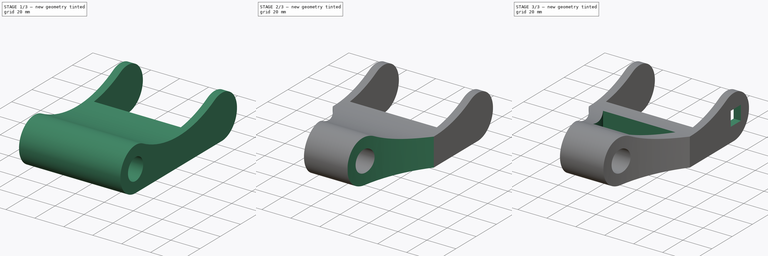
[diagram: build sequence overview — one tinted view per stage of 3, left to right]
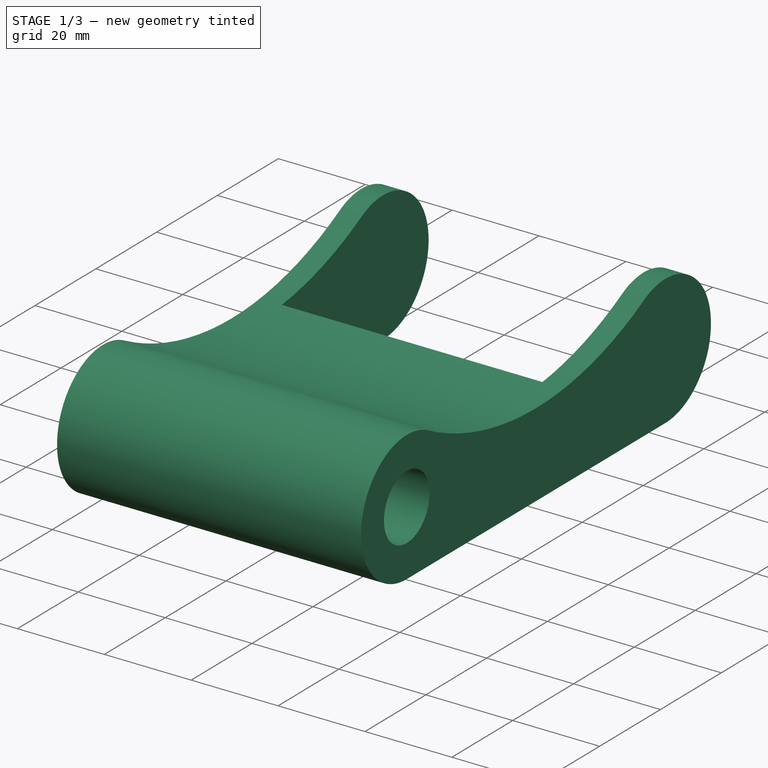
[diagram: stage 1 of 3 — iso view after this stage's code; geometry added in this stage tinted green]
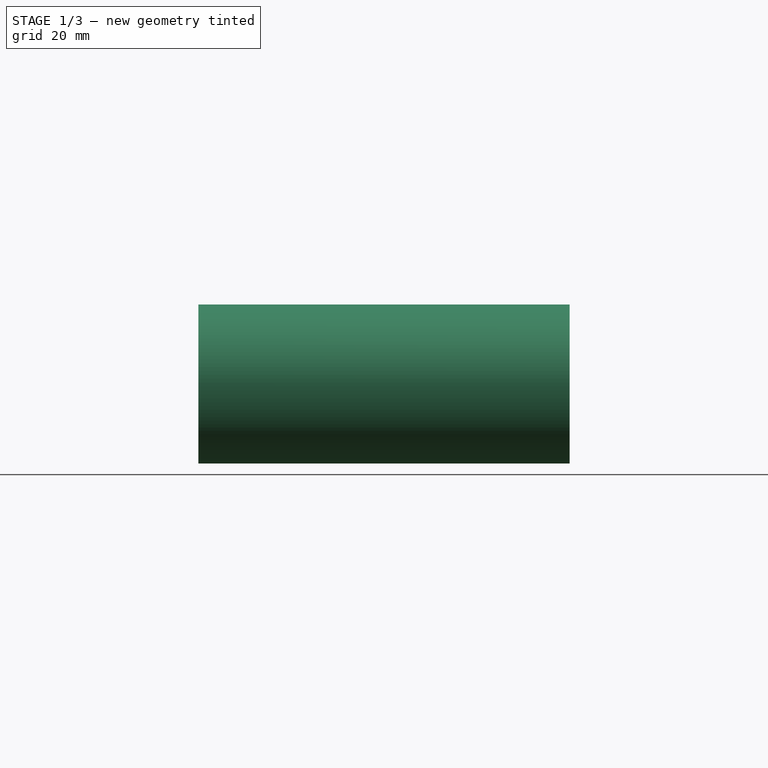
[diagram: stage 1 of 3 — front view after this stage's code; geometry added in this stage tinted green]
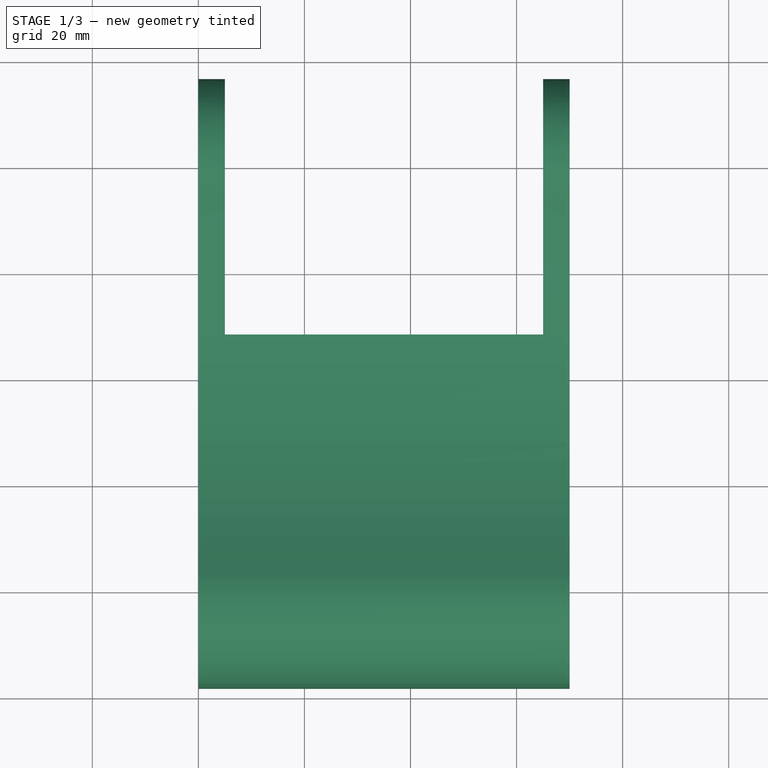
[diagram: stage 1 of 3 — top view after this stage's code; geometry added in this stage tinted green]
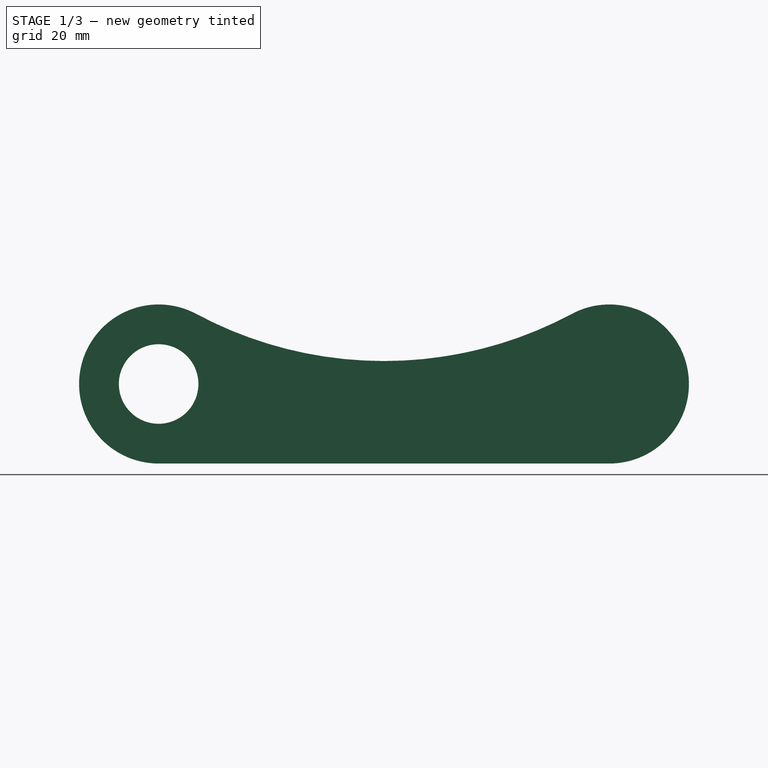
[diagram: stage 1 of 3 — right view after this stage's code; geometry added in this stage tinted green]
FCSTD DOCUMENT  (FreeCAD 0.20R29410 (Git))
Label: knee
License: All rights reserved
LicenseURL: http://en.wikipedia.org/wiki/All_rights_reserved
objects: Sketcher::SketchObject×5, PartDesign::Pocket×4, PartDesign::Pad×1, PartDesign::Body×1
note: 16 computed .brp shape members not serialized (recipe doc carries the construction recipe); baked Part::Feature solids carry a one-line shape summary decoded from their .brp

FEATURE [Sketcher::SketchObject] Sketch
  FullyConstrained = false
  MapMode = 5
  Placement = pos=(0,0,0) rot=(0.57735,0.57735,0.57735;2.0944rad)
  Support = -> [YZ_Plane]
  sketch-geometry (6):
    g0: ArcOfCircle CenterX=-43.413 CenterY=0 CenterZ=0 NormalX=0 NormalY=0 NormalZ=1 AngleXU=0 Radius=15 StartAngle=1.08882 EndAngle=4.71239
    g1: ArcOfCircle CenterX=41.5884 CenterY=0 CenterZ=0 NormalX=0 NormalY=0 NormalZ=1 AngleXU=0 Radius=15 StartAngle=4.71239 EndAngle=8.3477
    g2: LineSegment StartX=-43.413 StartY=-15 StartZ=0 EndX=41.5884 EndY=-15 EndZ=0
    g3: ArcOfCircle CenterX=-0.913172 CenterY=79.3323 CenterZ=0 NormalX=0 NormalY=0 NormalZ=1 AngleXU=0 Radius=75 StartAngle=4.21861 EndAngle=5.20384
    g4: Circle CenterX=-43.413 CenterY=0 CenterZ=0 NormalX=0 NormalY=0 NormalZ=1 AngleXU=0 Radius=7.5
    g5: GeomPoint X=-58.4114 Y=-0.220169 Z=0
  constraints (15):
    c: PointOnObject(g0,g-1)
    c: PointOnObject(g1,g-1)
    c: Radius(g0) = 15
    c: Radius(g1) = 15
    c: Coincident(g2,g0)
    c: Coincident(g2,g1)
    c: Horizontal(g2)
    c: Coincident(g3,g0)
    c: Coincident(g3,g1)
    c: Coincident(g4,g0)
    c: Radius(g4) = 7.5
    c: DistanceY(g0,g-1) = 15
    c: Radius(g3) = 75
    c: PointOnObject(g5,g0)
    c: Distance(g5,g1) = 100
FEATURE [PartDesign::Pad] Pad  label="MainKneePad"
  Direction = (1,-2e-16,3e-16)
  Length = 70
  Length2 = 10
  Placement = pos=(0,0,0) rot=(0.57735,0.57735,0.57735;2.0944rad)
  Profile = -> Sketch
  ReferenceAxis = -> Sketch [N_Axis]
  Type = 0
FEATURE [Sketcher::SketchObject] Sketch001
  AttachmentOffset = pos=(0,0,15) rot=(0,0,1;0rad)
  FullyConstrained = true
  MapMode = 5
  Placement = pos=(0,0,15) rot=(0,0,1;0rad)
  Support = -> [XY_Plane]
  sketch-geometry (4):
    g0: LineSegment StartX=5 StartY=56.59 StartZ=0 EndX=65 EndY=56.59 EndZ=0
    g1: LineSegment StartX=65 StartY=56.59 StartZ=0 EndX=65 EndY=8.34 EndZ=0
    g2: LineSegment StartX=65 StartY=8.34 StartZ=0 EndX=5 EndY=8.34 EndZ=0
    g3: LineSegment StartX=5 StartY=8.34 StartZ=0 EndX=5 EndY=56.59 EndZ=0
  constraints (12):
    c: Coincident(g0,g1)
    c: Coincident(g1,g2)
    c: Coincident(g2,g3)
    c: Coincident(g3,g0)
    c: Horizontal(g0)
    c: Horizontal(g2)
    c: Vertical(g1)
    c: Vertical(g3)
    c: DistanceX(g0,g0) = 60
    c: DistanceY(g3,g3) = 48.25
    c: DistanceX(g-1,g0) = 5
    c: DistanceY(g-1,g0) = 56.59
FEATURE [PartDesign::Pocket] Pocket  label="ServoPocket"
  BaseFeature = -> Pad
  Direction = (0,0,-1)
  Length = 30
  Length2 = 5
  Placement = pos=(0,0,0) rot=(0.57735,0.57735,0.57735;2.0944rad)
  Profile = -> Sketch001
  ReferenceAxis = -> Sketch001 [N_Axis]
  Type = 0
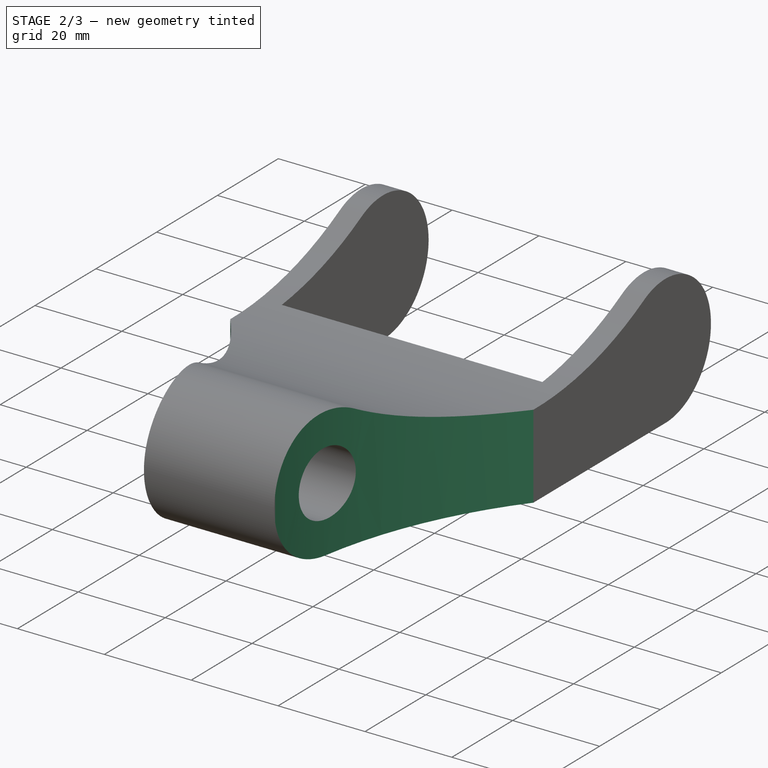
[diagram: stage 2 of 3 — iso view after this stage's code; geometry added in this stage tinted green]
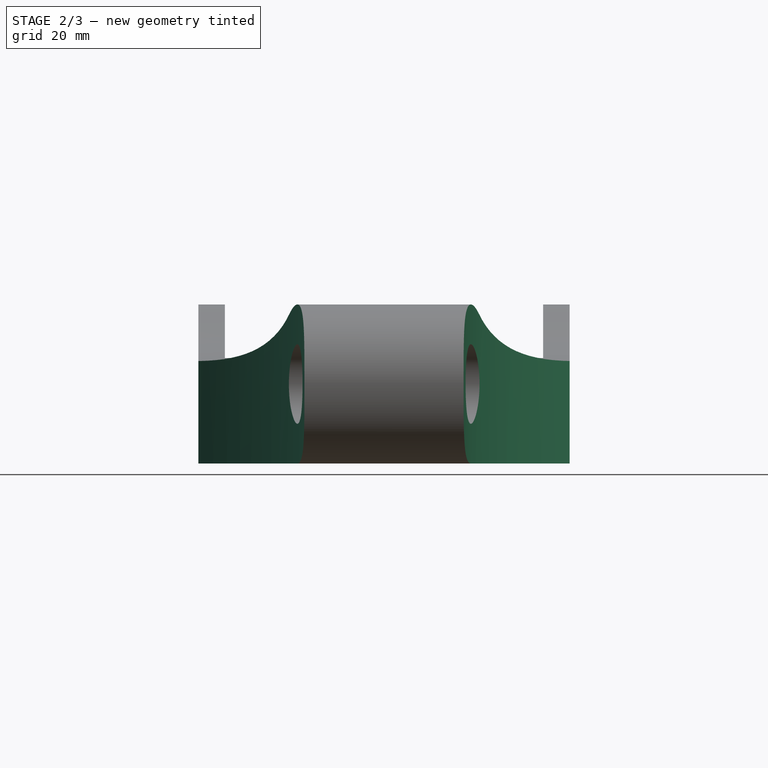
[diagram: stage 2 of 3 — front view after this stage's code; geometry added in this stage tinted green]
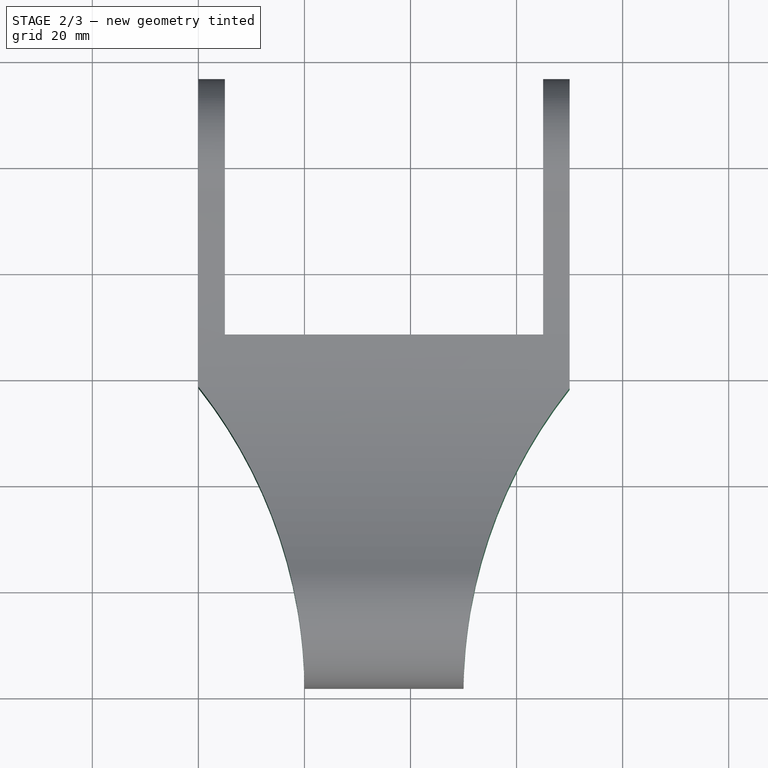
[diagram: stage 2 of 3 — top view after this stage's code; geometry added in this stage tinted green]
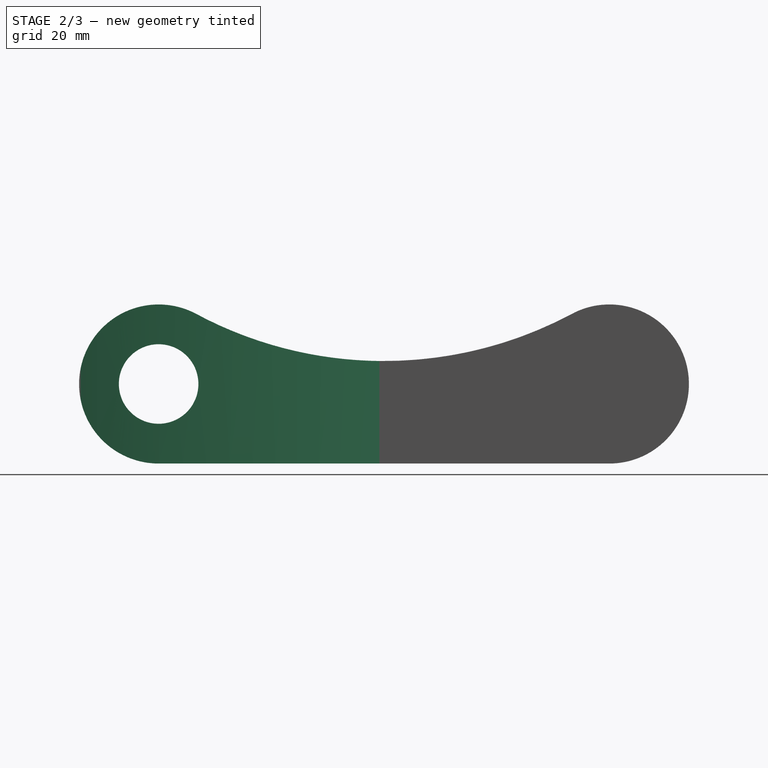
[diagram: stage 2 of 3 — right view after this stage's code; geometry added in this stage tinted green]
FEATURE [Sketcher::SketchObject] Sketch002
  AttachmentOffset = pos=(3,-0.1,-20) rot=(0,0,1;0rad)
  FullyConstrained = false
  MapMode = 5
  Placement = pos=(3,-0.1,-20) rot=(0,0,1;0rad)
  Support = -> [XY_Plane]
  sketch-geometry (7):
    g0: GeomPoint X=5 Y=8.34 Z=0
    g1: ArcOfCircle CenterX=-75.9991 CenterY=-59.0138 CenterZ=0 NormalX=0 NormalY=0 NormalZ=1 AngleXU=0 Radius=93 StartAngle=0.00443543 EndAngle=0.668203
    g2: ArcOfCircle CenterX=139.996 CenterY=-59.3133 CenterZ=0 NormalX=0 NormalY=0 NormalZ=1 AngleXU=0 Radius=93 StartAngle=2.47294 EndAngle=3.1318
    g3: LineSegment StartX=-3 StartY=-58.6013 StartZ=0 EndX=17 EndY=-58.6013 EndZ=0
    g4: LineSegment StartX=67.0223 StartY=-1.66 StartZ=0 EndX=67 EndY=-58.41 EndZ=0
    g5: LineSegment StartX=67 StartY=-58.41 StartZ=0 EndX=47 EndY=-58.4021 EndZ=0
    g6: LineSegment StartX=-3 StartY=-1.3932 StartZ=0 EndX=-3 EndY=-58.6013 EndZ=0
  constraints (20):
    c: DistanceY(g-1,g0) = 8.34
    c: DistanceX(g-1,g0) = 5
    c: PointOnObject(g1,g-2)
    c: Radius(g1) = 93
    c: DistanceY(g2,g-1) = 1.66
    c: Radius(g2) = 93
    c: Horizontal(g3)
    c: Coincident(g2,g4)
    c: Coincident(g4,g5)
    c: Distance(g5) = 20
    c: Distance(g4) = 56.75
    c: DistanceX(g1,g2) = 30
    c: Coincident(g2,g5)
    c: DistanceX(g1,g-1) = 3
    c: Coincident(g3,g1)
    c: DistanceX(g3,g3) = 20
    c: DistanceX(g-1,g1) = 17
    c: Coincident(g1,g6)
    c: Coincident(g3,g6)
    c: Perpendicular(g5,g4)
FEATURE [PartDesign::Pocket] Pocket001  label="CurvePocket"
  BaseFeature = -> Pocket
  Direction = (0,0,-1)
  Length = 50
  Length2 = 5
  Placement = pos=(0,0,0) rot=(0.57735,0.57735,0.57735;2.0944rad)
  Profile = -> Sketch002
  ReferenceAxis = -> Sketch002 [N_Axis]
  Reversed = true
  Type = 0
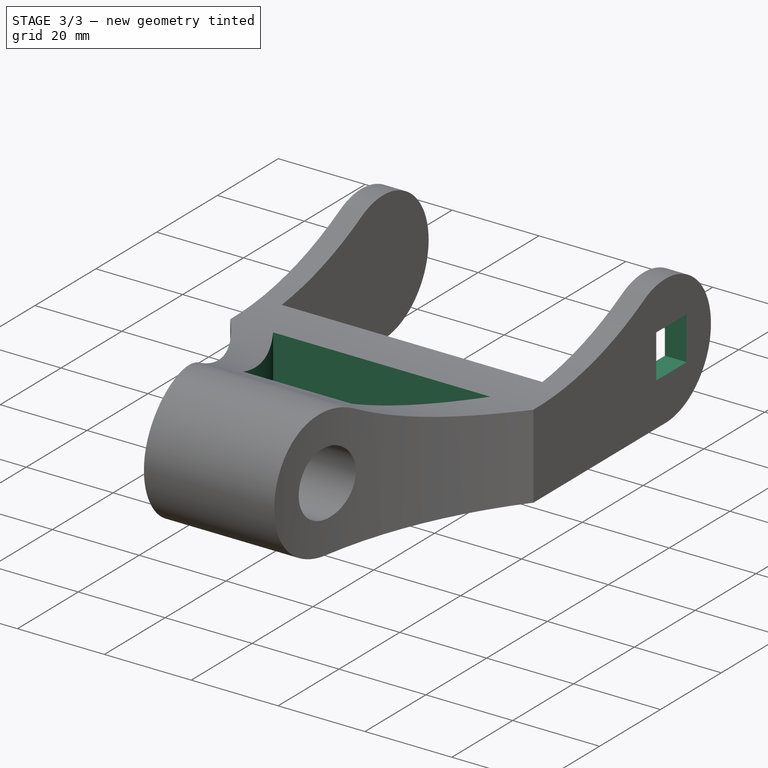
[diagram: stage 3 of 3 — iso view after this stage's code; geometry added in this stage tinted green]
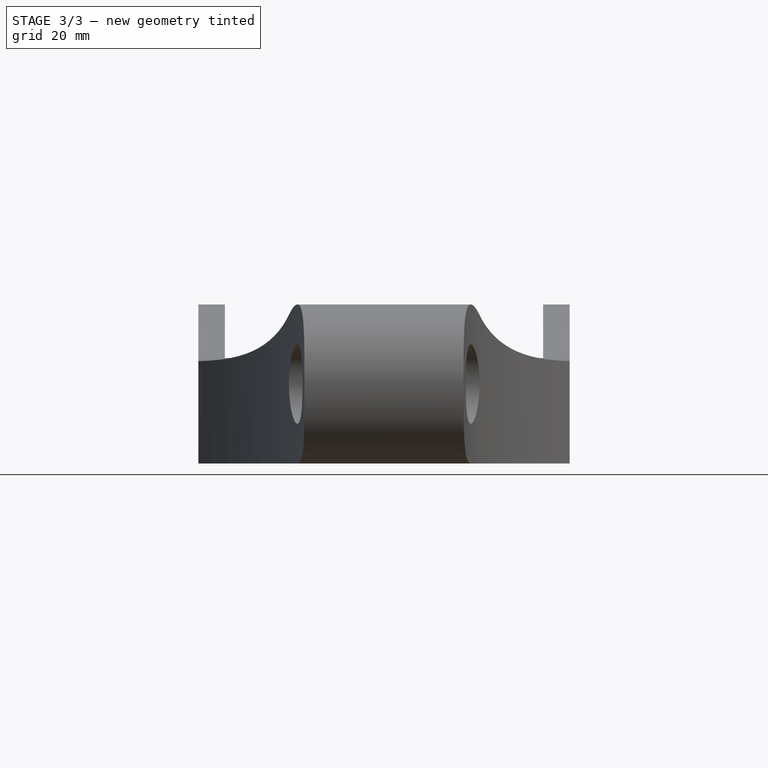
[diagram: stage 3 of 3 — front view after this stage's code; geometry added in this stage tinted green]
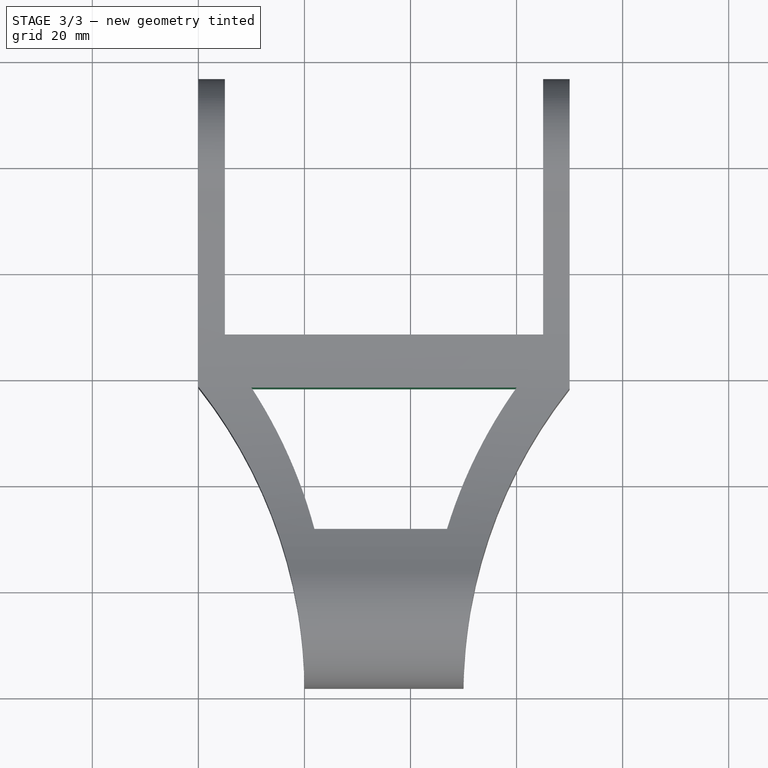
[diagram: stage 3 of 3 — top view after this stage's code; geometry added in this stage tinted green]
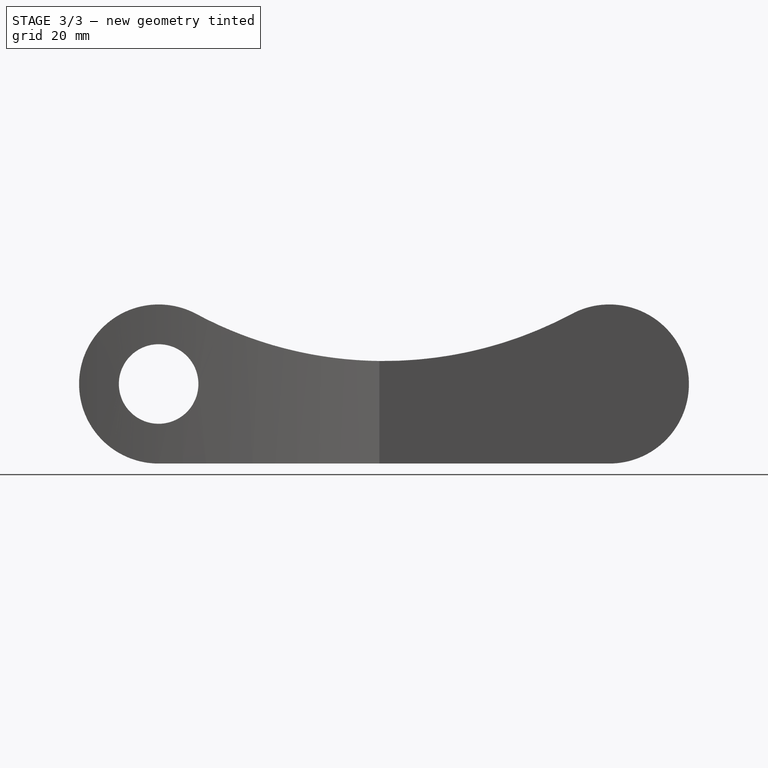
[diagram: stage 3 of 3 — right view after this stage's code; geometry added in this stage tinted green]
FEATURE [Sketcher::SketchObject] Sketch003
  AttachmentOffset = pos=(0,0,20) rot=(0,0,1;0rad)
  FullyConstrained = true
  MapMode = 5
  Placement = pos=(0,0,20) rot=(0,0,1;0rad)
  Support = -> [XY_Plane]
  sketch-geometry (4):
    g0: LineSegment StartX=10 StartY=-1.66 StartZ=0 EndX=60 EndY=-1.66 EndZ=0
    g1: ArcOfCircle CenterX=-67.996 CenterY=-52.312 CenterZ=0 NormalX=0 NormalY=0 NormalZ=1 AngleXU=0 Radius=93 StartAngle=0.259928 EndAngle=0.575966
    g2: ArcOfCircle CenterX=135.859 CenterY=-55.4591 CenterZ=0 NormalX=0 NormalY=0 NormalZ=1 AngleXU=0 Radius=93 StartAngle=2.52472 EndAngle=2.84648
    g3: LineSegment StartX=21.88 StartY=-28.41 StartZ=0 EndX=46.88 EndY=-28.41 EndZ=0
  constraints (14):
    c: Perpendicular(g-2,g0)
    c: DistanceY(g0,g-1) = 1.66
    c: DistanceX(g0,g0) = 50
    c: Coincident(g1,g0)
    c: Radius(g1) = 93
    c: Coincident(g2,g0)
    c: Radius(g2) = 93
    c: Coincident(g3,g1)
    c: Coincident(g3,g2)
    c: Horizontal(g3)
    c: DistanceX(g-1,g0) = 10
    c: DistanceY(g1,g-1) = 28.41
    c: DistanceX(g3,g3) = 25
    c: DistanceX(g0,g1) = 11.88
FEATURE [PartDesign::Pocket] Pocket002  label="Pocket"
  BaseFeature = -> Pocket001
  Direction = (0,0,-1)
  Length = 50
  Length2 = 5
  Placement = pos=(0,0,0) rot=(0.57735,0.57735,0.57735;2.0944rad)
  Profile = -> Sketch003
  ReferenceAxis = -> Sketch003 [N_Axis]
  Type = 0
FEATURE [Sketcher::SketchObject] Sketch004
  AttachmentOffset = pos=(0,0,70) rot=(0,0,1;0rad)
  FullyConstrained = true
  MapMode = 5
  Placement = pos=(70,-1.55e-14,1.55e-14) rot=(0.57735,0.57735,0.57735;2.0944rad)
  Support = -> [YZ_Plane]
  sketch-geometry (5):
    g0: LineSegment StartX=38.59 StartY=5 StartZ=0 EndX=48.59 EndY=5 EndZ=0
    g1: LineSegment StartX=48.59 StartY=5 StartZ=0 EndX=48.59 EndY=-5 EndZ=0
    g2: LineSegment StartX=48.59 StartY=-5 StartZ=0 EndX=38.59 EndY=-5 EndZ=0
    g3: LineSegment StartX=38.59 StartY=-5 StartZ=0 EndX=38.59 EndY=5 EndZ=0
    g4: GeomPoint X=43.59 Y=0 Z=0
  constraints (14):
    c: Coincident(g0,g1)
    c: Coincident(g1,g2)
    c: Coincident(g2,g3)
    c: Coincident(g3,g0)
    c: Horizontal(g0)
    c: Horizontal(g2)
    c: Vertical(g1)
    c: Vertical(g3)
    c: DistanceX(g0,g0) = 10
    c: DistanceY(g1,g1) = 10
    c: DistanceX(g0,g4) = 5
    c: DistanceY(g4,g0) = 5
    c: DistanceX(g-1,g4) = 43.59
    c: DistanceY(g4,g-1) = 0
FEATURE [PartDesign::Pocket] Pocket003  label="HingePocket"
  BaseFeature = -> Pocket002
  Direction = (-1,2e-16,-3e-16)
  Length = 5
  Length2 = 5
  Placement = pos=(0,0,0) rot=(0.57735,0.57735,0.57735;2.0944rad)
  Profile = -> Sketch004
  ReferenceAxis = -> Sketch004 [N_Axis]
  Type = 0
FEATURE [PartDesign::Body] Body
  Group = -> [Sketch,Pad,Sketch001,Pocket,Sketch002,Pocket001,Sketch003,Pocket002,Sketch004,Pocket003]
  Origin = -> Origin
  Tip = -> Pocket003
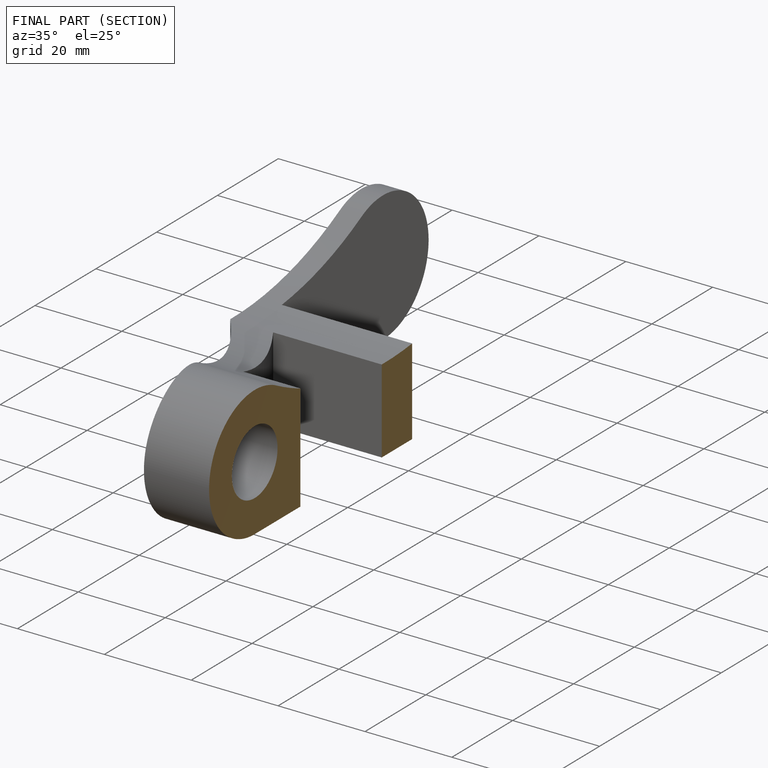
[diagram: finished part — half-section view (interior)]
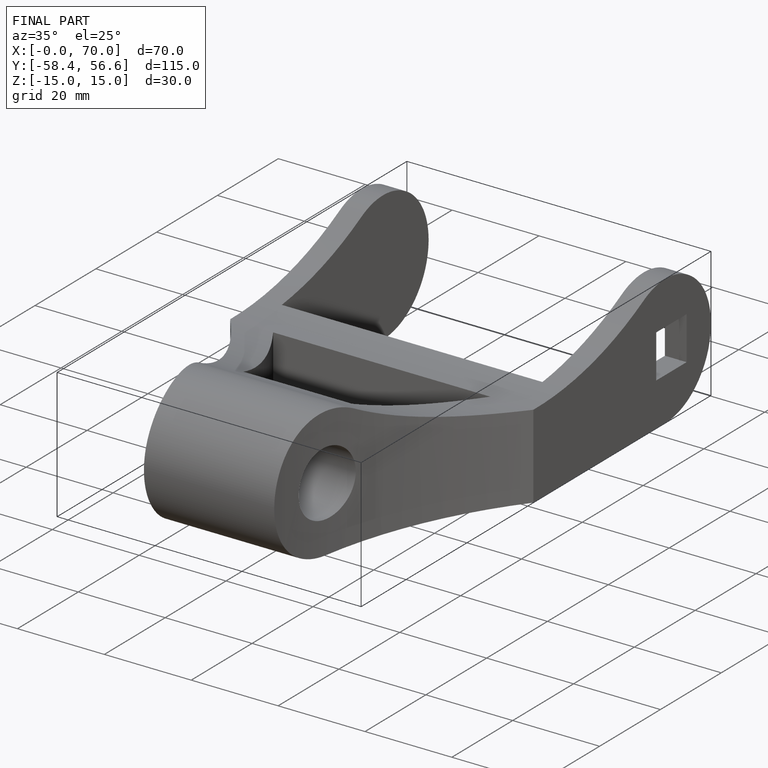
[diagram: finished part — iso view with bounding-box wireframe]
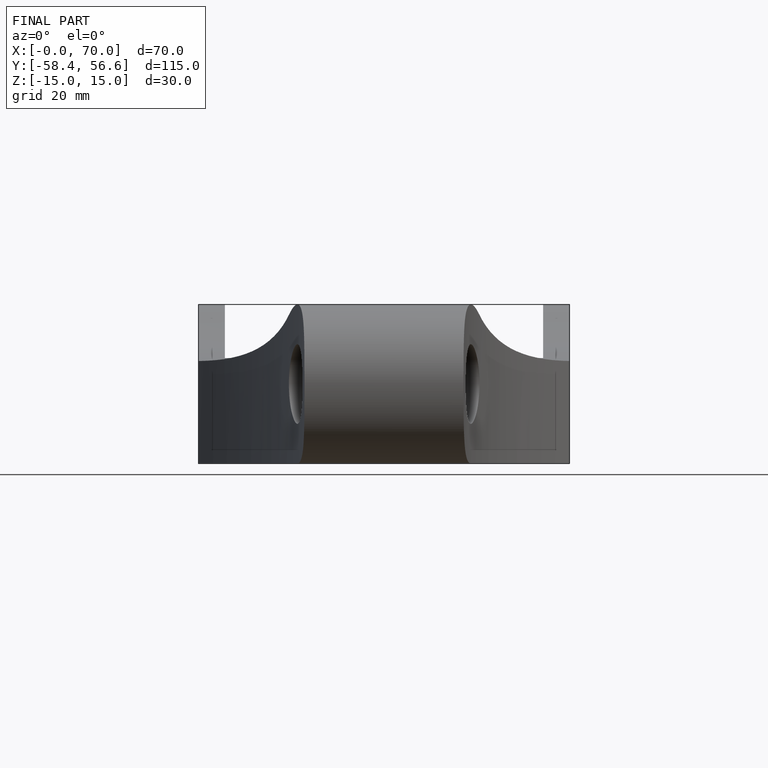
[diagram: finished part — front view with bounding-box wireframe]
